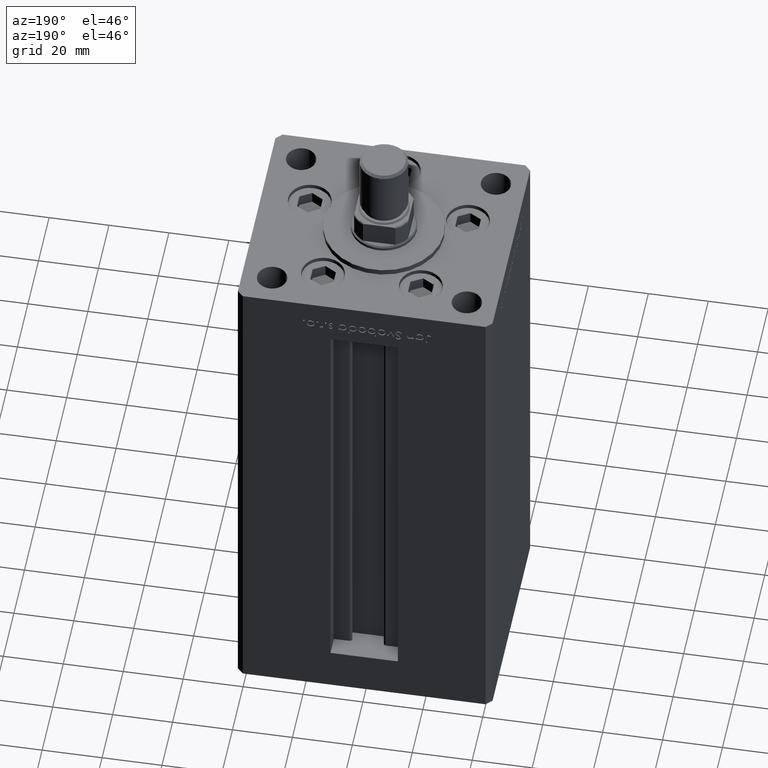
[diagram: clean part render]
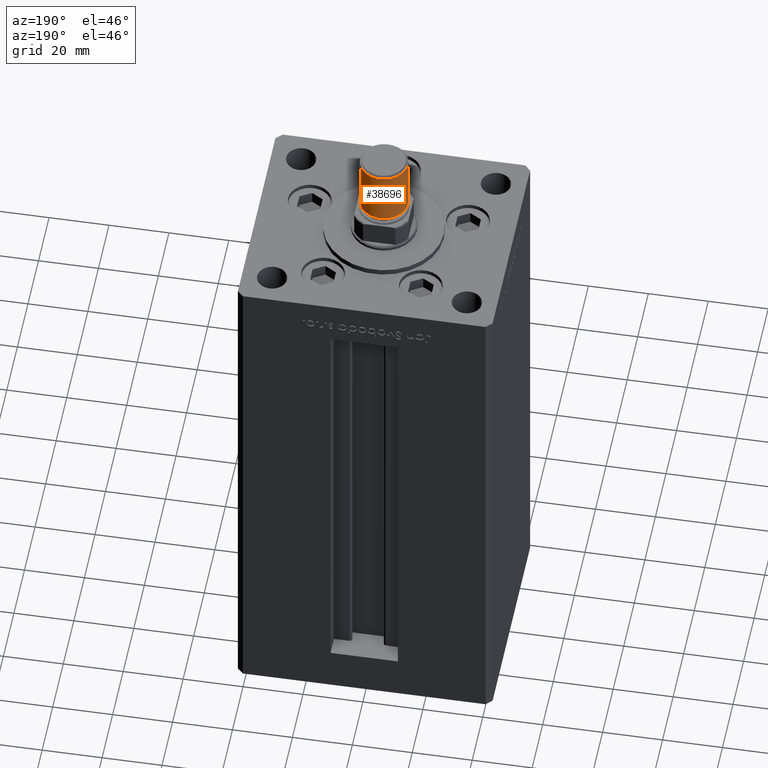
[diagram: same view with one face highlighted and labeled with its STEP entity id]
A machine part, auxiliary view. The second image highlights one B-rep face of the part: STEP entity #38696.
In plain terms, the highlighted cylindrical surface (edge-blend (fillet) strip) has radius 8 mm, axis along (0, 0, 1).
Its self-contained STEP definition (entity closure, byte-faithful):
#2173 = CYLINDRICAL_SURFACE ( 'NONE', #27391, 8.000000000000000000 ) ;
#4453 = ORIENTED_EDGE ( 'NONE', *, *, #11733, .T. ) ;
#5241 = VERTEX_POINT ( 'NONE', #40801 ) ;
#6176 = FACE_OUTER_BOUND ( 'NONE', #34783, .T. ) ;
#6924 = CARTESIAN_POINT ( 'NONE',  ( 0.000000000000000000, 0.000000000000000000, 0.8000000000000055955 ) ) ;
#7105 = CIRCLE ( 'NONE', #13075, 8.000000000000000000 ) ;
#7408 = CARTESIAN_POINT ( 'NONE',  ( 8.000000000000000000, 9.797174393178825657E-16, 19.50000000000000000 ) ) ;
#7976 = DIRECTION ( 'NONE',  ( 1.000000000000000000, 0.000000000000000000, 0.000000000000000000 ) ) ;
#11733 = EDGE_CURVE ( 'NONE', #5241, #20459, #19394, .T. ) ;
#13075 = AXIS2_PLACEMENT_3D ( 'NONE', #6924, #35683, #7976 ) ;
#15630 = CARTESIAN_POINT ( 'NONE',  ( -8.000000000000000000, 0.000000000000000000, 19.50000000000000000 ) ) ;
#16434 = AXIS2_PLACEMENT_3D ( 'NONE', #21759, #21496, #46010 ) ;
#18675 = DIRECTION ( 'NONE',  ( -0.000000000000000000, -0.000000000000000000, -1.000000000000000000 ) ) ;
#19394 = LINE ( 'NONE', #7408, #49171 ) ;
#20459 = VERTEX_POINT ( 'NONE', #32694 ) ;
#21496 = DIRECTION ( 'NONE',  ( 0.000000000000000000, 0.000000000000000000, 1.000000000000000000 ) ) ;
#21759 = CARTESIAN_POINT ( 'NONE',  ( 0.000000000000000000, 0.000000000000000000, 19.50000000000000000 ) ) ;
#22148 = CARTESIAN_POINT ( 'NONE',  ( -8.000000000000000000, 0.000000000000000000, 0.8000000000000055955 ) ) ;
#22784 = EDGE_CURVE ( 'NONE', #5241, #26363, #39418, .T. ) ;
#25600 = EDGE_CURVE ( 'NONE', #26363, #45901, #43356, .T. ) ;
#26363 = VERTEX_POINT ( 'NONE', #50629 ) ;
#27391 = AXIS2_PLACEMENT_3D ( 'NONE', #42658, #18675, #42402 ) ;
#30590 = ORIENTED_EDGE ( 'NONE', *, *, #41834, .T. ) ;
#32694 = CARTESIAN_POINT ( 'NONE',  ( 8.000000000000000000, 9.797174393178825657E-16, 0.8000000000000055955 ) ) ;
#34783 = EDGE_LOOP ( 'NONE', ( #38163, #4453, #30590, #39049 ) ) ;
#35683 = DIRECTION ( 'NONE',  ( -0.000000000000000000, -0.000000000000000000, 1.000000000000000000 ) ) ;
#36164 = DIRECTION ( 'NONE',  ( -0.000000000000000000, -0.000000000000000000, -1.000000000000000000 ) ) ;
#38163 = ORIENTED_EDGE ( 'NONE', *, *, #22784, .F. ) ;
#38696 = ADVANCED_FACE ( 'NONE', ( #6176 ), #2173, .T. ) ;
#39049 = ORIENTED_EDGE ( 'NONE', *, *, #25600, .F. ) ;
#39418 = CIRCLE ( 'NONE', #16434, 8.000000000000000000 ) ;
#39881 = DIRECTION ( 'NONE',  ( -0.000000000000000000, -0.000000000000000000, -1.000000000000000000 ) ) ;
#40801 = CARTESIAN_POINT ( 'NONE',  ( 8.000000000000000000, 9.797174393178825657E-16, 19.50000000000000000 ) ) ;
#41834 = EDGE_CURVE ( 'NONE', #20459, #45901, #7105, .T. ) ;
#42402 = DIRECTION ( 'NONE',  ( -1.000000000000000000, 0.000000000000000000, 0.000000000000000000 ) ) ;
#42658 = CARTESIAN_POINT ( 'NONE',  ( 0.000000000000000000, 0.000000000000000000, 19.50000000000000000 ) ) ;
#43356 = LINE ( 'NONE', #15630, #47578 ) ;
#45901 = VERTEX_POINT ( 'NONE', #22148 ) ;
#46010 = DIRECTION ( 'NONE',  ( 1.000000000000000000, 0.000000000000000000, 0.000000000000000000 ) ) ;
#47578 = VECTOR ( 'NONE', #39881, 1000.000000000000000 ) ;
#49171 = VECTOR ( 'NONE', #36164, 1000.000000000000000 ) ;
#50629 = CARTESIAN_POINT ( 'NONE',  ( -8.000000000000000000, 0.000000000000000000, 19.50000000000000000 ) ) ;